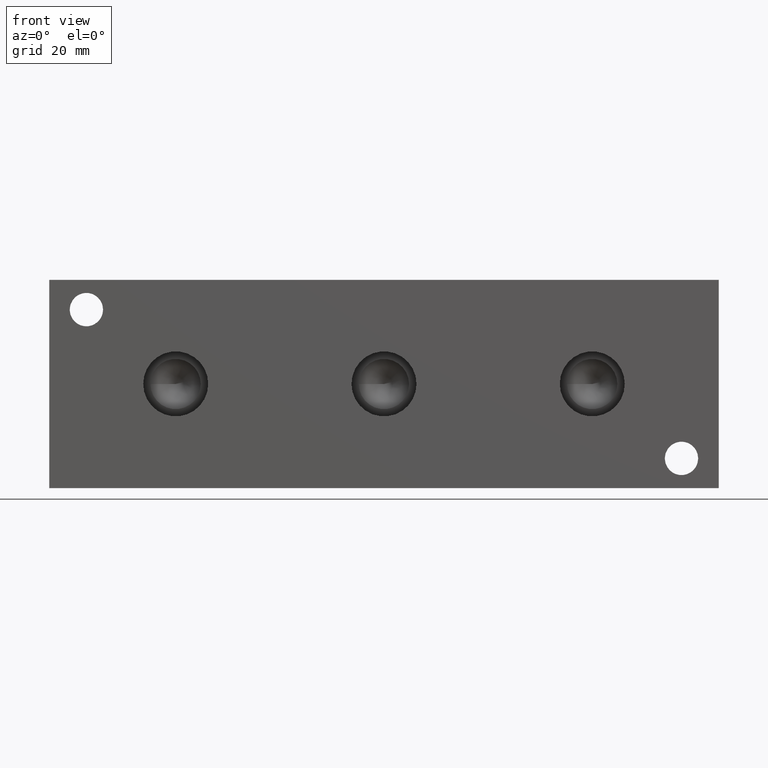
[diagram: clean part render]
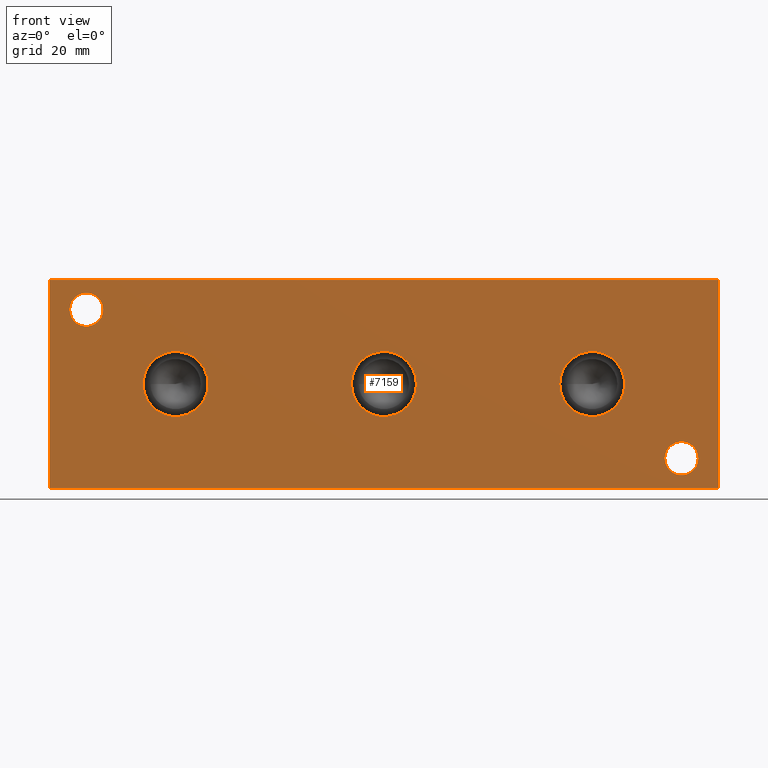
[diagram: same view with one face highlighted and labeled with its STEP entity id]
A machine part, front view. The second image highlights one B-rep face of the part: STEP entity #7159.
In plain terms, the highlighted planar face has unit normal (0, -1, 0).
Its self-contained STEP definition (entity closure, byte-faithful):
#69=CIRCLE('',#7408,6.9342);
#70=CIRCLE('',#7409,6.9342);
#76=CIRCLE('',#7419,6.9342);
#77=CIRCLE('',#7420,6.9342);
#83=CIRCLE('',#7430,6.9342);
#84=CIRCLE('',#7431,6.9342);
#85=CIRCLE('',#7434,3.5687);
#86=CIRCLE('',#7435,3.5687);
#88=CIRCLE('',#7443,3.5687);
#89=CIRCLE('',#7444,3.5687);
#168=FACE_BOUND('',#1171,.T.);
#169=FACE_BOUND('',#1172,.T.);
#170=FACE_BOUND('',#1173,.T.);
#171=FACE_BOUND('',#1174,.T.);
#172=FACE_BOUND('',#1175,.T.);
#400=PLANE('',#7509);
#762=FACE_OUTER_BOUND('',#1170,.T.);
#1170=EDGE_LOOP('',(#6368,#6369,#6370,#6371));
#1171=EDGE_LOOP('',(#6372,#6373));
#1172=EDGE_LOOP('',(#6374,#6375));
#1173=EDGE_LOOP('',(#6376,#6377));
#1174=EDGE_LOOP('',(#6378,#6379));
#1175=EDGE_LOOP('',(#6380,#6381));
#1460=LINE('',#11059,#2161);
#1874=LINE('',#12205,#2575);
#1879=LINE('',#12214,#2580);
#1880=LINE('',#12216,#2581);
#2161=VECTOR('',#7940,10.);
#2575=VECTOR('',#8870,10.);
#2580=VECTOR('',#8879,10.);
#2581=VECTOR('',#8882,10.);
#3098=VERTEX_POINT('',#11057);
#3099=VERTEX_POINT('',#11058);
#3380=VERTEX_POINT('',#12008);
#3381=VERTEX_POINT('',#12009);
#3388=VERTEX_POINT('',#12030);
#3389=VERTEX_POINT('',#12031);
#3396=VERTEX_POINT('',#12052);
#3397=VERTEX_POINT('',#12053);
#3398=VERTEX_POINT('',#12060);
#3399=VERTEX_POINT('',#12061);
#3403=VERTEX_POINT('',#12076);
#3404=VERTEX_POINT('',#12077);
#3445=VERTEX_POINT('',#12203);
#3447=VERTEX_POINT('',#12212);
#3916=EDGE_CURVE('',#3098,#3099,#1460,.T.);
#4329=EDGE_CURVE('',#3380,#3381,#69,.T.);
#4330=EDGE_CURVE('',#3381,#3380,#70,.T.);
#4339=EDGE_CURVE('',#3388,#3389,#76,.T.);
#4340=EDGE_CURVE('',#3389,#3388,#77,.T.);
#4349=EDGE_CURVE('',#3396,#3397,#83,.T.);
#4350=EDGE_CURVE('',#3397,#3396,#84,.T.);
#4353=EDGE_CURVE('',#3398,#3399,#85,.T.);
#4354=EDGE_CURVE('',#3399,#3398,#86,.T.);
#4362=EDGE_CURVE('',#3403,#3404,#88,.T.);
#4363=EDGE_CURVE('',#3404,#3403,#89,.T.);
#4422=EDGE_CURVE('',#3445,#3098,#1874,.T.);
#4427=EDGE_CURVE('',#3447,#3099,#1879,.T.);
#4428=EDGE_CURVE('',#3445,#3447,#1880,.T.);
#6368=ORIENTED_EDGE('',*,*,#4428,.T.);
#6369=ORIENTED_EDGE('',*,*,#4427,.T.);
#6370=ORIENTED_EDGE('',*,*,#3916,.F.);
#6371=ORIENTED_EDGE('',*,*,#4422,.F.);
#6372=ORIENTED_EDGE('',*,*,#4329,.T.);
#6373=ORIENTED_EDGE('',*,*,#4330,.T.);
#6374=ORIENTED_EDGE('',*,*,#4339,.T.);
#6375=ORIENTED_EDGE('',*,*,#4340,.T.);
#6376=ORIENTED_EDGE('',*,*,#4349,.T.);
#6377=ORIENTED_EDGE('',*,*,#4350,.T.);
#6378=ORIENTED_EDGE('',*,*,#4353,.T.);
#6379=ORIENTED_EDGE('',*,*,#4354,.T.);
#6380=ORIENTED_EDGE('',*,*,#4362,.T.);
#6381=ORIENTED_EDGE('',*,*,#4363,.T.);
#7159=ADVANCED_FACE('',(#762,#168,#169,#170,#171,#172),#400,.T.);
#7408=AXIS2_PLACEMENT_3D('',#12010,#8640,#8641);
#7409=AXIS2_PLACEMENT_3D('',#12011,#8642,#8643);
#7419=AXIS2_PLACEMENT_3D('',#12032,#8665,#8666);
#7420=AXIS2_PLACEMENT_3D('',#12033,#8667,#8668);
#7430=AXIS2_PLACEMENT_3D('',#12054,#8690,#8691);
#7431=AXIS2_PLACEMENT_3D('',#12055,#8692,#8693);
#7434=AXIS2_PLACEMENT_3D('',#12062,#8700,#8701);
#7435=AXIS2_PLACEMENT_3D('',#12063,#8702,#8703);
#7443=AXIS2_PLACEMENT_3D('',#12078,#8720,#8721);
#7444=AXIS2_PLACEMENT_3D('',#12079,#8722,#8723);
#7509=AXIS2_PLACEMENT_3D('',#12215,#8880,#8881);
#7940=DIRECTION('',(1.,0.,0.));
#8640=DIRECTION('center_axis',(0.,1.,0.));
#8641=DIRECTION('ref_axis',(1.,0.,0.));
#8642=DIRECTION('center_axis',(0.,1.,0.));
#8643=DIRECTION('ref_axis',(1.,0.,0.));
#8665=DIRECTION('center_axis',(0.,1.,0.));
#8666=DIRECTION('ref_axis',(1.,0.,0.));
#8667=DIRECTION('center_axis',(0.,1.,0.));
#8668=DIRECTION('ref_axis',(1.,0.,0.));
#8690=DIRECTION('center_axis',(0.,1.,0.));
#8691=DIRECTION('ref_axis',(1.,0.,0.));
#8692=DIRECTION('center_axis',(0.,1.,0.));
#8693=DIRECTION('ref_axis',(1.,0.,0.));
#8700=DIRECTION('center_axis',(0.,1.,0.));
#8701=DIRECTION('ref_axis',(1.,0.,0.));
#8702=DIRECTION('center_axis',(0.,1.,0.));
#8703=DIRECTION('ref_axis',(1.,0.,0.));
#8720=DIRECTION('center_axis',(0.,1.,0.));
#8721=DIRECTION('ref_axis',(1.,0.,0.));
#8722=DIRECTION('center_axis',(0.,1.,0.));
#8723=DIRECTION('ref_axis',(1.,0.,0.));
#8870=DIRECTION('',(0.,0.,1.));
#8879=DIRECTION('',(0.,0.,1.));
#8880=DIRECTION('center_axis',(0.,-1.,0.));
#8881=DIRECTION('ref_axis',(1.,0.,0.));
#8882=DIRECTION('',(1.,0.,0.));
#11057=CARTESIAN_POINT('',(0.,0.,44.45));
#11058=CARTESIAN_POINT('',(142.875,0.,44.45));
#11059=CARTESIAN_POINT('',(0.,0.,44.45));
#12008=CARTESIAN_POINT('',(78.359,0.,22.225));
#12009=CARTESIAN_POINT('',(64.4906,0.,22.225));
#12010=CARTESIAN_POINT('Origin',(71.4248,0.,22.225));
#12011=CARTESIAN_POINT('Origin',(71.4248,0.,22.225));
#12030=CARTESIAN_POINT('',(33.909,0.,22.225));
#12031=CARTESIAN_POINT('',(20.0406,0.,22.225));
#12032=CARTESIAN_POINT('Origin',(26.9748,0.,22.225));
#12033=CARTESIAN_POINT('Origin',(26.9748,0.,22.225));
#12052=CARTESIAN_POINT('',(122.809,0.,22.225));
#12053=CARTESIAN_POINT('',(108.9406,0.,22.225));
#12054=CARTESIAN_POINT('Origin',(115.8748,0.,22.225));
#12055=CARTESIAN_POINT('Origin',(115.8748,0.,22.225));
#12060=CARTESIAN_POINT('',(11.4935,0.,38.1));
#12061=CARTESIAN_POINT('',(4.3561,1.77635683940025E-14,38.1));
#12062=CARTESIAN_POINT('Origin',(7.9248,0.,38.1));
#12063=CARTESIAN_POINT('Origin',(7.9248,0.,38.1));
#12076=CARTESIAN_POINT('',(138.4935,0.,6.35));
#12077=CARTESIAN_POINT('',(131.3561,1.77635683940025E-14,6.35));
#12078=CARTESIAN_POINT('Origin',(134.9248,0.,6.35));
#12079=CARTESIAN_POINT('Origin',(134.9248,0.,6.35));
#12203=CARTESIAN_POINT('',(0.,0.,0.));
#12205=CARTESIAN_POINT('',(0.,0.,0.));
#12212=CARTESIAN_POINT('',(142.875,0.,0.));
#12214=CARTESIAN_POINT('',(142.875,0.,0.));
#12215=CARTESIAN_POINT('Origin',(0.,0.,0.));
#12216=CARTESIAN_POINT('',(0.,0.,0.));